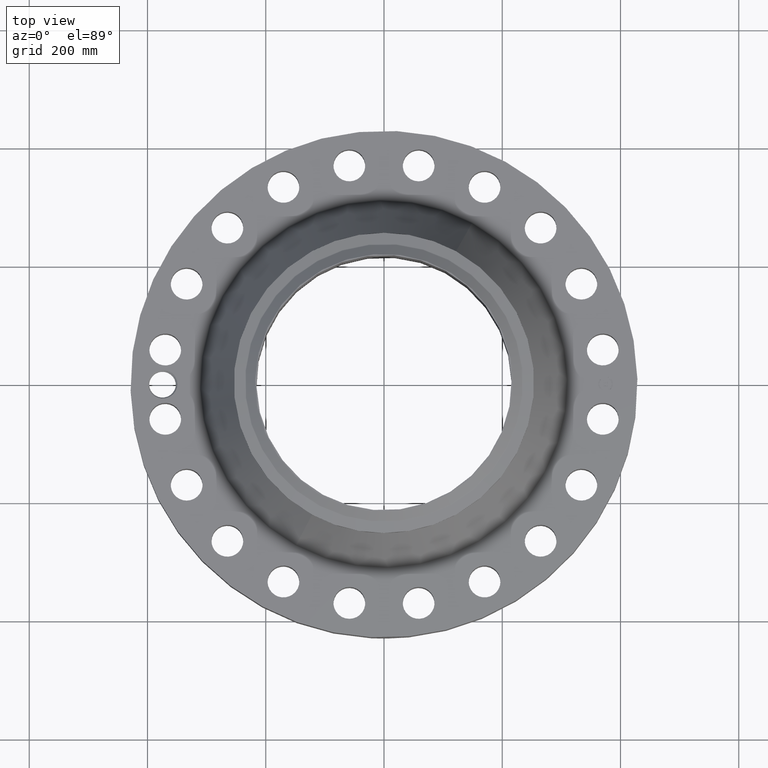
[diagram: clean part render]
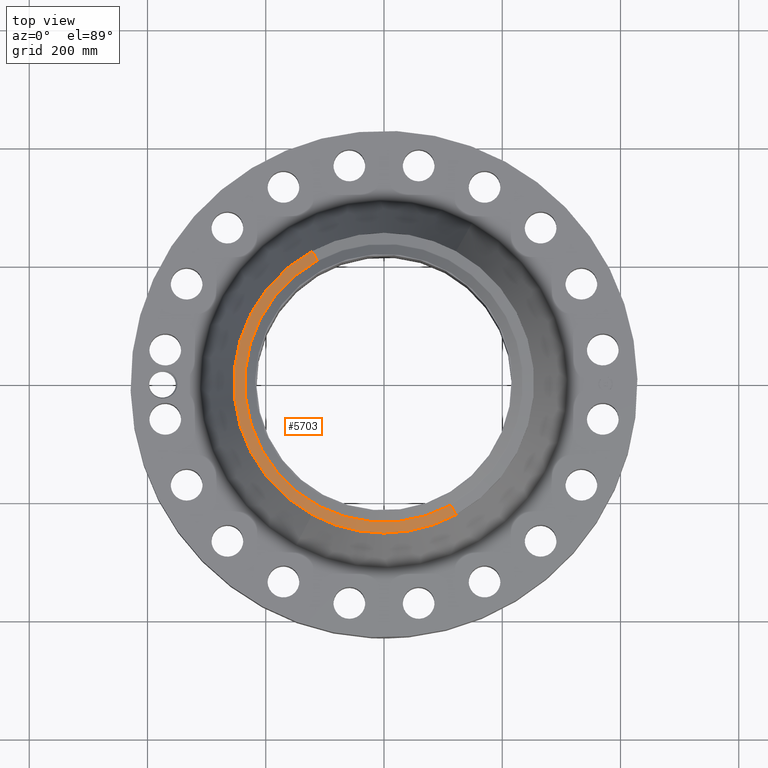
[diagram: same view with one face highlighted and labeled with its STEP entity id]
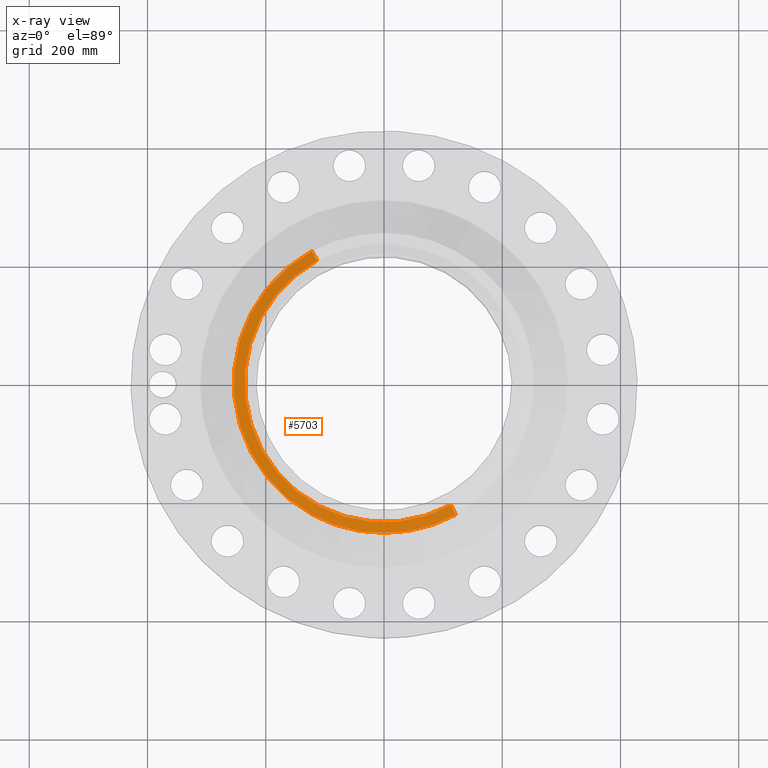
[diagram: x-ray of the same camera — body ghosted, the highlighted face saturated]
A machine part, top view. The second image highlights one B-rep face of the part: STEP entity #5703.
The next image is the same camera in x-ray: the body ghosted, the highlighted face saturated — about 0% of this face is hidden behind the body in this view.
In plain terms, the highlighted conical surface has half-angle 80 deg.
Its self-contained STEP definition (entity closure, byte-faithful):
#4222=AXIS2_PLACEMENT_3D('Circle Axis2P3D',#4220,#4221,$) ;
#4235=AXIS2_PLACEMENT_3D('Circle Axis2P3D',#4233,#4234,$) ;
#5035=AXIS2_PLACEMENT_3D('Circle Axis2P3D',#5033,#5034,$) ;
#5676=AXIS2_PLACEMENT_3D('Cone Axis2P3D',#5673,#5674,#5675) ;
#4203=CARTESIAN_POINT('Vertex',(-4.79425538606,-8.77582561894,9.35384235724)) ;
#4217=CARTESIAN_POINT('Vertex',(4.79425538606,-8.77582561894,9.35384235724)) ;
#4220=CARTESIAN_POINT('Axis2P3D Location',(0.,0.,9.35384235724)) ;
#4233=CARTESIAN_POINT('Axis2P3D Location',(0.,0.,9.35384235724)) ;
#4237=CARTESIAN_POINT('Vertex',(-4.79425538606,8.77582561894,9.35384235724)) ;
#5030=CARTESIAN_POINT('Vertex',(-4.4473880412,8.14088920311,9.48141601926)) ;
#5033=CARTESIAN_POINT('Axis2P3D Location',(0.,0.,9.48141601926)) ;
#5037=CARTESIAN_POINT('Vertex',(4.4473880412,-8.14088920311,9.48141601926)) ;
#5673=CARTESIAN_POINT('Axis2P3D Location',(0.,0.,9.48141601926)) ;
#5678=CARTESIAN_POINT('Line Origine',(-4.62082171363,8.45835741102,9.41762918825)) ;
#5683=CARTESIAN_POINT('Line Origine',(4.62082171363,-8.45835741102,9.41762918825)) ;
#4221=DIRECTION('Axis2P3D Direction',(0.,0.,-0.0393700787402)) ;
#4234=DIRECTION('Axis2P3D Direction',(0.,0.,-0.0393700787402)) ;
#5034=DIRECTION('Axis2P3D Direction',(0.,0.,0.0393700787402)) ;
#5674=DIRECTION('Axis2P3D Direction',(-0.,-0.,-0.0393700787402)) ;
#5675=DIRECTION('Axis2P3D XDirection',(0.0188750212049,-0.0345504945626,0.)) ;
#5679=DIRECTION('Vector Direction',(-0.0185882672208,0.0340255949157,-0.00683654242783)) ;
#5684=DIRECTION('Vector Direction',(0.0185882672208,-0.0340255949157,-0.00683654242783)) ;
#5680=VECTOR('Line Direction',#5679,0.0393700787402) ;
#5685=VECTOR('Line Direction',#5684,0.0393700787402) ;
#5697=ORIENTED_EDGE('',*,*,#5687,.F.) ;
#5698=ORIENTED_EDGE('',*,*,#5039,.F.) ;
#5699=ORIENTED_EDGE('',*,*,#5682,.T.) ;
#5700=ORIENTED_EDGE('',*,*,#4239,.T.) ;
#5701=ORIENTED_EDGE('',*,*,#4224,.F.) ;
#5703=ADVANCED_FACE('PartBody',(#5702),#5677,.T.) ;
#4223=CIRCLE('generated circle',#4222,10.) ;
#4236=CIRCLE('generated circle',#4235,10.) ;
#5036=CIRCLE('generated circle',#5035,9.27649380996) ;
#5677=CONICAL_SURFACE('Cone',#5676,9.27649380996,1.3962634016) ;
#4224=EDGE_CURVE('',#4218,#4204,#4223,.T.) ;
#4239=EDGE_CURVE('',#4238,#4204,#4236,.F.) ;
#5039=EDGE_CURVE('',#5031,#5038,#5036,.T.) ;
#5682=EDGE_CURVE('',#5031,#4238,#5681,.T.) ;
#5687=EDGE_CURVE('',#5038,#4218,#5686,.T.) ;
#5696=EDGE_LOOP('',(#5697,#5698,#5699,#5700,#5701)) ;
#5702=FACE_OUTER_BOUND('',#5696,.T.) ;
#5681=LINE('Line',#5678,#5680) ;
#5686=LINE('Line',#5683,#5685) ;
#4204=VERTEX_POINT('',#4203) ;
#4218=VERTEX_POINT('',#4217) ;
#4238=VERTEX_POINT('',#4237) ;
#5031=VERTEX_POINT('',#5030) ;
#5038=VERTEX_POINT('',#5037) ;